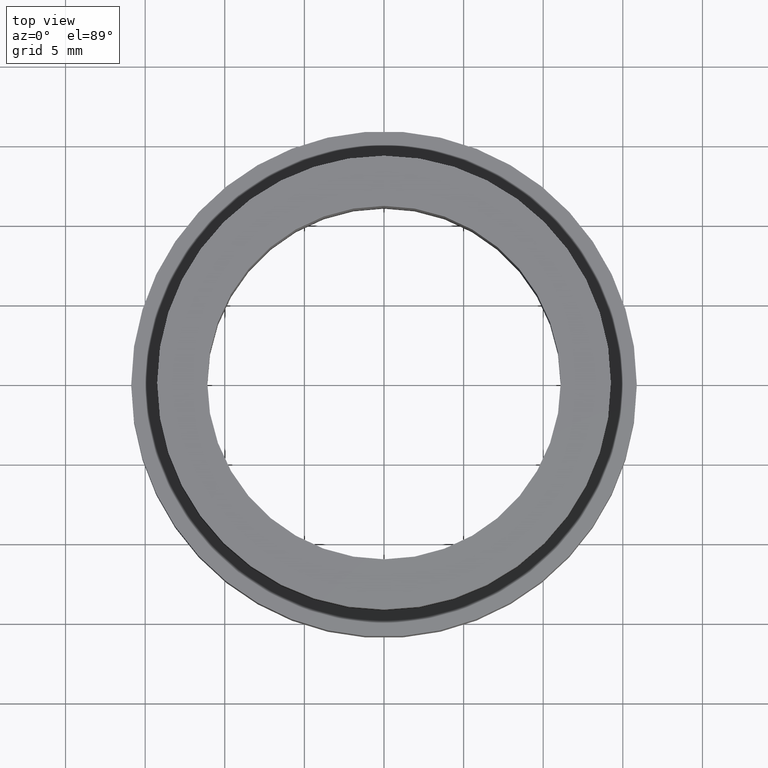
[diagram: clean part render]
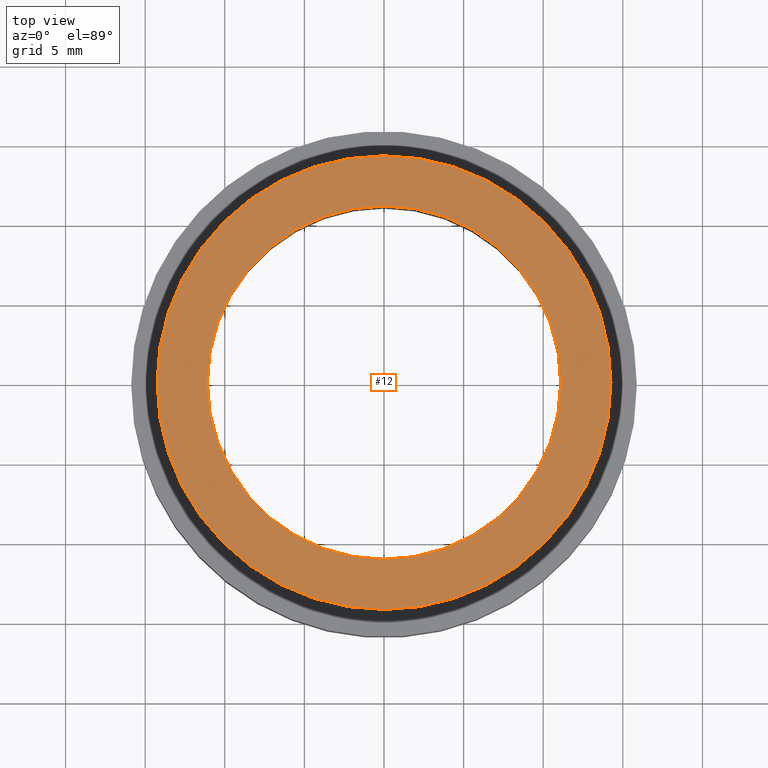
[diagram: same view with one face highlighted and labeled with its STEP entity id]
A machine part, top view. The second image highlights one B-rep face of the part: STEP entity #12.
In plain terms, the highlighted planar face has unit normal (-0, 0, -1).
Its self-contained STEP definition (entity closure, byte-faithful):
#3 = ORIENTED_EDGE ( 'NONE', *, *, #24, .T. ) ;
#5 = CIRCLE ( 'NONE', #276, 11.10000000000000100 ) ;
#11 = DIRECTION ( 'NONE',  ( -1.000000000000000000, 0.0000000000000000000, 0.0000000000000000000 ) ) ;
#12 = ADVANCED_FACE ( 'NONE', ( #364, #313 ), #172, .F. ) ;
#13 = AXIS2_PLACEMENT_3D ( 'NONE', #323, #265, #386 ) ;
#14 = ORIENTED_EDGE ( 'NONE', *, *, #381, .F. ) ;
#24 = EDGE_CURVE ( 'NONE', #400, #156, #5, .T. ) ;
#36 = DIRECTION ( 'NONE',  ( -0.0000000000000000000, -0.0000000000000000000, -1.000000000000000000 ) ) ;
#74 = DIRECTION ( 'NONE',  ( -1.000000000000000000, 0.0000000000000000000, 0.0000000000000000000 ) ) ;
#88 = CARTESIAN_POINT ( 'NONE',  ( 0.0000000000000000000, 0.0000000000000000000, 0.0000000000000000000 ) ) ;
#103 = CARTESIAN_POINT ( 'NONE',  ( 14.25000000000000400, 1.745121688784978600E-015, 0.0000000000000000000 ) ) ;
#109 = VERTEX_POINT ( 'NONE', #139 ) ;
#124 = EDGE_CURVE ( 'NONE', #272, #109, #343, .T. ) ;
#136 = AXIS2_PLACEMENT_3D ( 'NONE', #250, #375, #74 ) ;
#139 = CARTESIAN_POINT ( 'NONE',  ( -14.25000000000000400, 0.0000000000000000000, 0.0000000000000000000 ) ) ;
#140 = DIRECTION ( 'NONE',  ( -1.000000000000000000, 0.0000000000000000000, 0.0000000000000000000 ) ) ;
#155 = EDGE_LOOP ( 'NONE', ( #14, #353 ) ) ;
#156 = VERTEX_POINT ( 'NONE', #408 ) ;
#172 = PLANE ( 'NONE',  #13 ) ;
#176 = EDGE_CURVE ( 'NONE', #156, #400, #183, .T. ) ;
#183 = CIRCLE ( 'NONE', #136, 11.10000000000000100 ) ;
#186 = ORIENTED_EDGE ( 'NONE', *, *, #176, .T. ) ;
#195 = AXIS2_PLACEMENT_3D ( 'NONE', #425, #430, #432 ) ;
#216 = AXIS2_PLACEMENT_3D ( 'NONE', #88, #279, #11 ) ;
#250 = CARTESIAN_POINT ( 'NONE',  ( 0.0000000000000000000, 0.0000000000000000000, 0.0000000000000000000 ) ) ;
#265 = DIRECTION ( 'NONE',  ( -0.0000000000000000000, 0.0000000000000000000, -1.000000000000000000 ) ) ;
#268 = CIRCLE ( 'NONE', #216, 14.25000000000000400 ) ;
#272 = VERTEX_POINT ( 'NONE', #103 ) ;
#276 = AXIS2_PLACEMENT_3D ( 'NONE', #422, #36, #140 ) ;
#279 = DIRECTION ( 'NONE',  ( -0.0000000000000000000, -0.0000000000000000000, -1.000000000000000000 ) ) ;
#313 = FACE_BOUND ( 'NONE', #333, .T. ) ;
#323 = CARTESIAN_POINT ( 'NONE',  ( 11.10000000000000100, 0.0000000000000000000, 0.0000000000000000000 ) ) ;
#333 = EDGE_LOOP ( 'NONE', ( #3, #186 ) ) ;
#343 = CIRCLE ( 'NONE', #195, 14.25000000000000400 ) ;
#353 = ORIENTED_EDGE ( 'NONE', *, *, #124, .F. ) ;
#360 = CARTESIAN_POINT ( 'NONE',  ( -11.10000000000000100, 0.0000000000000000000, 0.0000000000000000000 ) ) ;
#364 = FACE_OUTER_BOUND ( 'NONE', #155, .T. ) ;
#375 = DIRECTION ( 'NONE',  ( -0.0000000000000000000, -0.0000000000000000000, -1.000000000000000000 ) ) ;
#381 = EDGE_CURVE ( 'NONE', #109, #272, #268, .T. ) ;
#386 = DIRECTION ( 'NONE',  ( -1.000000000000000000, 0.0000000000000000000, 0.0000000000000000000 ) ) ;
#400 = VERTEX_POINT ( 'NONE', #360 ) ;
#408 = CARTESIAN_POINT ( 'NONE',  ( 11.10000000000000100, 1.359357947053562400E-015, 0.0000000000000000000 ) ) ;
#422 = CARTESIAN_POINT ( 'NONE',  ( 0.0000000000000000000, 0.0000000000000000000, 0.0000000000000000000 ) ) ;
#425 = CARTESIAN_POINT ( 'NONE',  ( 0.0000000000000000000, 0.0000000000000000000, 0.0000000000000000000 ) ) ;
#430 = DIRECTION ( 'NONE',  ( -0.0000000000000000000, -0.0000000000000000000, -1.000000000000000000 ) ) ;
#432 = DIRECTION ( 'NONE',  ( -1.000000000000000000, 0.0000000000000000000, 0.0000000000000000000 ) ) ;